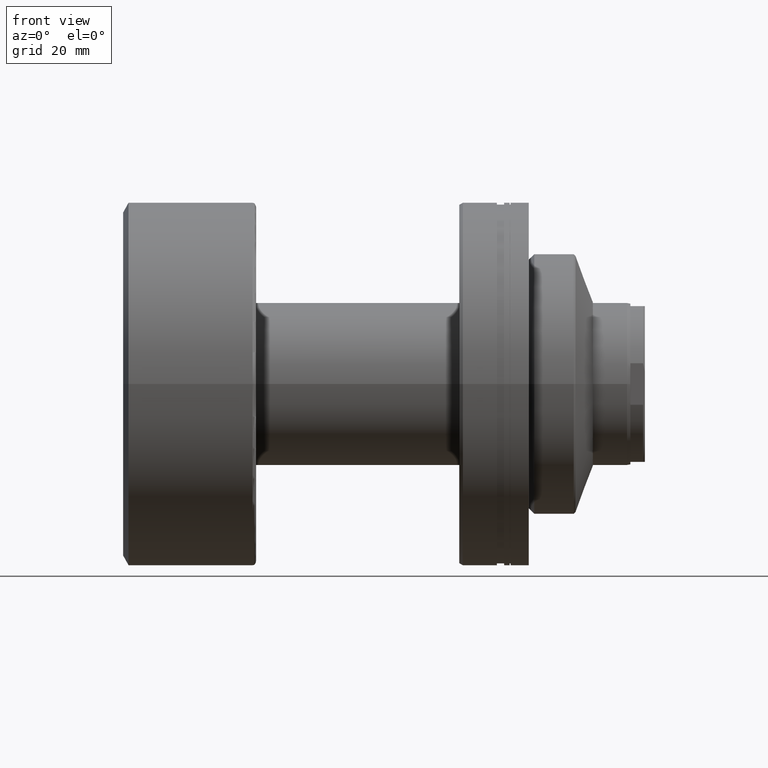
[diagram: clean part render]
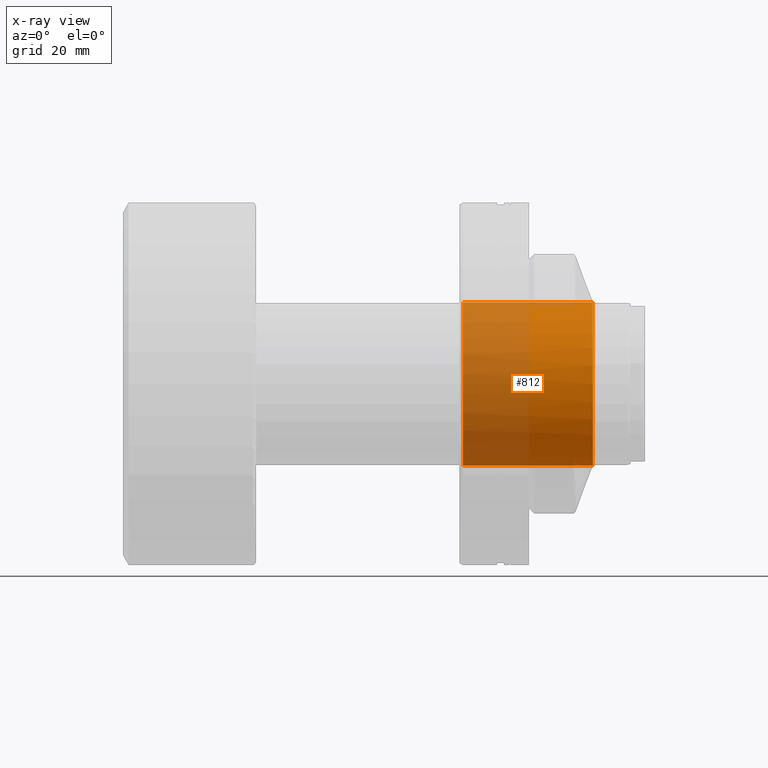
[diagram: x-ray — body ghosted, one internal face saturated and labeled with its STEP entity id]
A machine part, front view, then the same camera in x-ray: the body is ghosted and one INTERNAL B-rep face — a face not visible from any outside direction — is saturated and labeled: STEP entity #812.
In plain terms, the highlighted cylindrical surface (partial cylindrical patch) has radius 22.5 mm, axis along (1, 0, 0).
Its self-contained STEP definition (entity closure, byte-faithful):
#201 = CARTESIAN_POINT ( 'NONE',  ( -8.302816901408885286, 5.462247379445728618E-15, 0.000000000000000000 ) ) ;
#261 = EDGE_CURVE ( 'NONE', #1848, #603, #2208, .T. ) ;
#278 = DIRECTION ( 'NONE',  ( 0.000000000000000000, 0.000000000000000000, -1.000000000000000000 ) ) ;
#368 = LINE ( 'NONE', #1084, #1017 ) ;
#452 = AXIS2_PLACEMENT_3D ( 'NONE', #1453, #1103, #1658 ) ;
#489 = DIRECTION ( 'NONE',  ( -1.000000000000000000, -2.485414848852932351E-16, 0.000000000000000000 ) ) ;
#517 = CARTESIAN_POINT ( 'NONE',  ( -8.302816901408885286, 2.755455298081545172E-15, 22.50000000000000355 ) ) ;
#568 = AXIS2_PLACEMENT_3D ( 'NONE', #909, #1094, #1798 ) ;
#580 = CARTESIAN_POINT ( 'NONE',  ( -44.19999999999998863, 0.000000000000000000, -22.50000000000000355 ) ) ;
#603 = VERTEX_POINT ( 'NONE', #1075 ) ;
#686 = DIRECTION ( 'NONE',  ( 1.000000000000000000, -0.000000000000000000, -0.000000000000000000 ) ) ;
#730 = AXIS2_PLACEMENT_3D ( 'NONE', #2193, #1163, #278 ) ;
#809 = CIRCLE ( 'NONE', #1496, 22.50000000000000355 ) ;
#812 = ADVANCED_FACE ( 'NONE', ( #1268 ), #1126, .F. ) ;
#909 = CARTESIAN_POINT ( 'NONE',  ( -8.302816901408885286, 5.462247379445728618E-15, 0.000000000000000000 ) ) ;
#920 = DIRECTION ( 'NONE',  ( 1.000000000000000000, -0.000000000000000000, -0.000000000000000000 ) ) ;
#925 = VERTEX_POINT ( 'NONE', #1629 ) ;
#982 = CIRCLE ( 'NONE', #568, 22.50000000000000355 ) ;
#1017 = VECTOR ( 'NONE', #920, 1000.000000000000000 ) ;
#1045 = LINE ( 'NONE', #2269, #2134 ) ;
#1075 = CARTESIAN_POINT ( 'NONE',  ( -44.19999999999998863, 2.755455298081545172E-15, 22.50000000000000355 ) ) ;
#1084 = CARTESIAN_POINT ( 'NONE',  ( -108.8396103067892966, 2.755455298081545172E-15, 22.50000000000000355 ) ) ;
#1094 = DIRECTION ( 'NONE',  ( -1.000000000000000000, -2.485414848852932351E-16, 0.000000000000000000 ) ) ;
#1098 = EDGE_CURVE ( 'NONE', #1848, #1922, #1045, .T. ) ;
#1103 = DIRECTION ( 'NONE',  ( -1.000000000000000000, 0.000000000000000000, 0.000000000000000000 ) ) ;
#1126 = CYLINDRICAL_SURFACE ( 'NONE', #730, 22.50000000000000355 ) ;
#1163 = DIRECTION ( 'NONE',  ( 1.000000000000000000, -0.000000000000000000, -0.000000000000000000 ) ) ;
#1268 = FACE_OUTER_BOUND ( 'NONE', #2184, .T. ) ;
#1326 = VERTEX_POINT ( 'NONE', #517 ) ;
#1332 = ORIENTED_EDGE ( 'NONE', *, *, #1098, .F. ) ;
#1453 = CARTESIAN_POINT ( 'NONE',  ( -44.19999999999998863, 0.000000000000000000, 0.000000000000000000 ) ) ;
#1492 = ORIENTED_EDGE ( 'NONE', *, *, #1594, .F. ) ;
#1496 = AXIS2_PLACEMENT_3D ( 'NONE', #201, #489, #2116 ) ;
#1517 = ORIENTED_EDGE ( 'NONE', *, *, #1585, .T. ) ;
#1585 = EDGE_CURVE ( 'NONE', #603, #1326, #368, .T. ) ;
#1594 = EDGE_CURVE ( 'NONE', #1922, #925, #982, .T. ) ;
#1629 = CARTESIAN_POINT ( 'NONE',  ( -8.302816901408881733, -22.49999999999999645, 0.000000000000000000 ) ) ;
#1658 = DIRECTION ( 'NONE',  ( 0.000000000000000000, 0.000000000000000000, -1.000000000000000000 ) ) ;
#1798 = DIRECTION ( 'NONE',  ( 2.312964634635742464E-16, -1.000000000000000000, 0.000000000000000000 ) ) ;
#1848 = VERTEX_POINT ( 'NONE', #580 ) ;
#1922 = VERTEX_POINT ( 'NONE', #2058 ) ;
#2050 = ORIENTED_EDGE ( 'NONE', *, *, #261, .T. ) ;
#2054 = EDGE_CURVE ( 'NONE', #925, #1326, #809, .T. ) ;
#2058 = CARTESIAN_POINT ( 'NONE',  ( -8.302816901408885286, 0.000000000000000000, -22.50000000000000355 ) ) ;
#2116 = DIRECTION ( 'NONE',  ( 2.312964634635742464E-16, -1.000000000000000000, 0.000000000000000000 ) ) ;
#2134 = VECTOR ( 'NONE', #686, 1000.000000000000000 ) ;
#2184 = EDGE_LOOP ( 'NONE', ( #2050, #1517, #2279, #1492, #1332 ) ) ;
#2193 = CARTESIAN_POINT ( 'NONE',  ( -108.8396103067892966, 0.000000000000000000, 0.000000000000000000 ) ) ;
#2208 = CIRCLE ( 'NONE', #452, 22.50000000000000355 ) ;
#2269 = CARTESIAN_POINT ( 'NONE',  ( -108.8396103067892966, 0.000000000000000000, -22.50000000000000355 ) ) ;
#2279 = ORIENTED_EDGE ( 'NONE', *, *, #2054, .F. ) ;